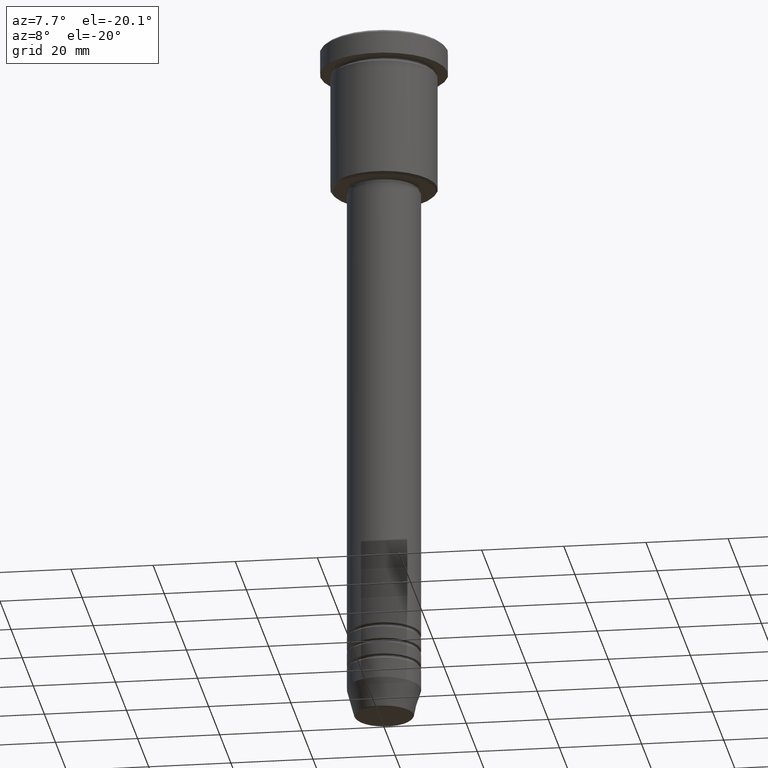
[diagram: clean part render]
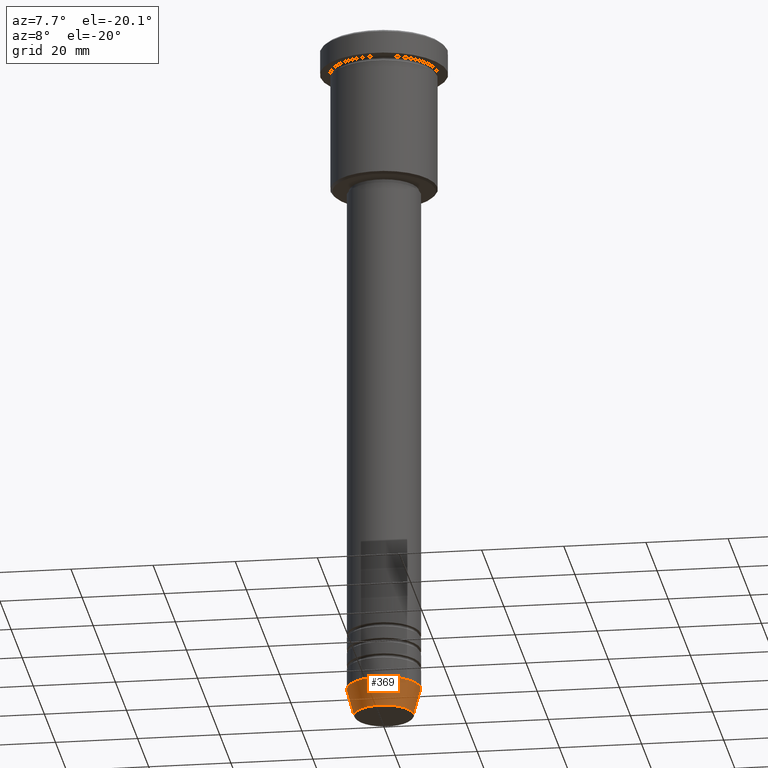
[diagram: same view with one face highlighted and labeled with its STEP entity id]
A machine part, auxiliary view. The second image highlights one B-rep face of the part: STEP entity #369.
In plain terms, the highlighted conical surface has half-angle 15 deg.
Its self-contained STEP definition (entity closure, byte-faithful):
#54 = AXIS2_PLACEMENT_3D ( 'NONE', #897, #958, #1062 ) ;
#70 = CONICAL_SURFACE ( 'NONE', #54, 9.000000000000000000, 0.2617993877991500740 ) ;
#86 = CIRCLE ( 'NONE', #1153, 9.000000000000000000 ) ;
#161 = CARTESIAN_POINT ( 'NONE',  ( -9.000000000000000000, 1.102182119232617714E-15, -164.0000000000000284 ) ) ;
#171 = DIRECTION ( 'NONE',  ( 0.2588190451025213501, 0.000000000000000000, 0.9659258262890680902 ) ) ;
#181 = EDGE_CURVE ( 'NONE', #795, #619, #836, .T. ) ;
#252 = ORIENTED_EDGE ( 'NONE', *, *, #181, .T. ) ;
#301 = DIRECTION ( 'NONE',  ( 1.000000000000000000, 0.000000000000000000, 0.000000000000000000 ) ) ;
#349 = EDGE_CURVE ( 'NONE', #619, #430, #352, .T. ) ;
#352 = LINE ( 'NONE', #638, #1085 ) ;
#367 = LINE ( 'NONE', #161, #859 ) ;
#369 = ADVANCED_FACE ( 'NONE', ( #903 ), #70, .T. ) ;
#373 = DIRECTION ( 'NONE',  ( -0.000000000000000000, -0.000000000000000000, 1.000000000000000000 ) ) ;
#430 = VERTEX_POINT ( 'NONE', #489 ) ;
#456 = DIRECTION ( 'NONE',  ( 1.000000000000000000, 0.000000000000000000, 0.000000000000000000 ) ) ;
#489 = CARTESIAN_POINT ( 'NONE',  ( 9.000000000000000000, 0.000000000000000000, -164.0000000000000284 ) ) ;
#516 = CARTESIAN_POINT ( 'NONE',  ( -9.000000000000000000, 1.102182119232617714E-15, -164.0000000000000284 ) ) ;
#541 = AXIS2_PLACEMENT_3D ( 'NONE', #831, #373, #301 ) ;
#551 = DIRECTION ( 'NONE',  ( -0.2588190451025213501, 3.169619151431772337E-17, 0.9659258262890680902 ) ) ;
#619 = VERTEX_POINT ( 'NONE', #825 ) ;
#638 = CARTESIAN_POINT ( 'NONE',  ( 9.000000000000000000, 0.000000000000000000, -164.0000000000000284 ) ) ;
#666 = EDGE_CURVE ( 'NONE', #795, #950, #367, .T. ) ;
#677 = CARTESIAN_POINT ( 'NONE',  ( -7.223655072137189492, 9.934123627281765110E-16, -170.6294095225513274 ) ) ;
#706 = ORIENTED_EDGE ( 'NONE', *, *, #1106, .F. ) ;
#795 = VERTEX_POINT ( 'NONE', #677 ) ;
#825 = CARTESIAN_POINT ( 'NONE',  ( 7.223655072137188604, 0.000000000000000000, -170.6294095225513274 ) ) ;
#831 = CARTESIAN_POINT ( 'NONE',  ( 0.000000000000000000, 0.000000000000000000, -170.6294095225513274 ) ) ;
#836 = CIRCLE ( 'NONE', #541, 7.223655072137188604 ) ;
#859 = VECTOR ( 'NONE', #551, 1000.000000000000000 ) ;
#897 = CARTESIAN_POINT ( 'NONE',  ( 0.000000000000000000, 0.000000000000000000, -164.0000000000000284 ) ) ;
#903 = FACE_OUTER_BOUND ( 'NONE', #1155, .T. ) ;
#950 = VERTEX_POINT ( 'NONE', #516 ) ;
#958 = DIRECTION ( 'NONE',  ( -0.000000000000000000, -0.000000000000000000, 1.000000000000000000 ) ) ;
#986 = DIRECTION ( 'NONE',  ( -0.000000000000000000, -0.000000000000000000, 1.000000000000000000 ) ) ;
#1019 = ORIENTED_EDGE ( 'NONE', *, *, #666, .F. ) ;
#1062 = DIRECTION ( 'NONE',  ( 1.000000000000000000, 0.000000000000000000, 0.000000000000000000 ) ) ;
#1085 = VECTOR ( 'NONE', #171, 1000.000000000000000 ) ;
#1106 = EDGE_CURVE ( 'NONE', #950, #430, #86, .T. ) ;
#1121 = ORIENTED_EDGE ( 'NONE', *, *, #349, .T. ) ;
#1153 = AXIS2_PLACEMENT_3D ( 'NONE', #1173, #986, #456 ) ;
#1155 = EDGE_LOOP ( 'NONE', ( #1019, #252, #1121, #706 ) ) ;
#1173 = CARTESIAN_POINT ( 'NONE',  ( 0.000000000000000000, 0.000000000000000000, -164.0000000000000284 ) ) ;